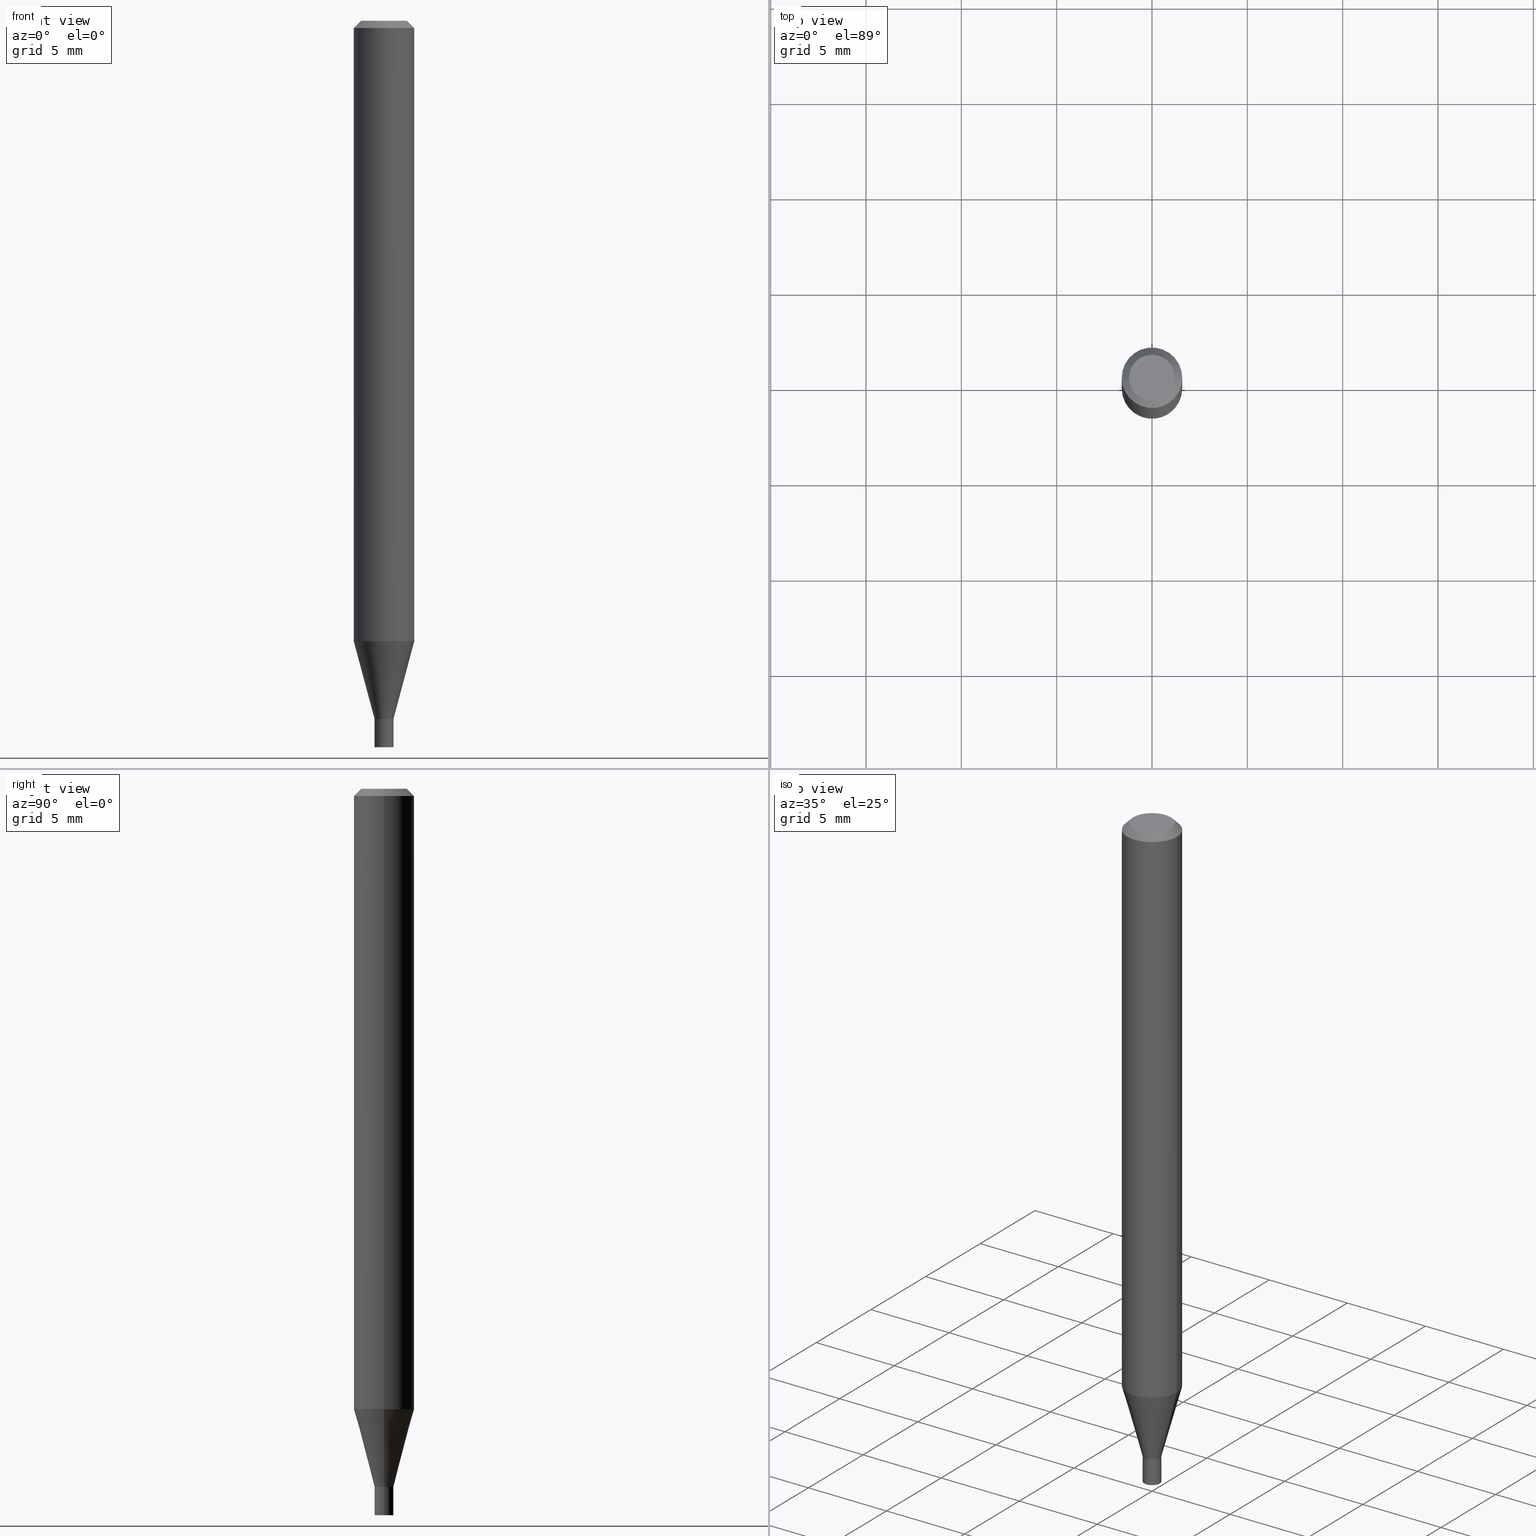
[diagram: canonical four-view strip — front | top / right | iso, engineering-drawing reading convention]
A machine part, canonical four-view strip (front | top / right | iso — engineering-drawing reading convention). The complete STEP part file that produces these views, byte-faithful:
ISO-10303-21;
HEADER;
FILE_DESCRIPTION (( 'STEP AP203' ),
    '1' );
FILE_NAME ('04074.STEP',
    '2024-03-14T16:57:08',
    ( '' ),
    ( '' ),
    'SwSTEP 2.0',
    'SolidWorks 2023',
    '' );
FILE_SCHEMA (( 'CONFIG_CONTROL_DESIGN' ));
ENDSEC;

DATA;
#1 = LINE ( 'NONE', #327, #191 ) ;
#2 = DIRECTION ( 'NONE',  ( -2.445468806185136597E-29, 3.491481338843145583E-15, 1.000000000000000000 ) ) ;
#3 = VERTEX_POINT ( 'NONE', #338 ) ;
#4 = FACE_OUTER_BOUND ( 'NONE', #88, .T. ) ;
#5 = AXIS2_PLACEMENT_3D ( 'NONE', #342, #404, #22 ) ;
#6 = DIRECTION ( 'NONE',  ( 0.7071067811865642261, -2.468850131082431399E-15, 0.7071067811865309194 ) ) ;
#7 = ORIENTED_EDGE ( 'NONE', *, *, #217, .F. ) ;
#8 =( NAMED_UNIT ( * ) PLANE_ANGLE_UNIT ( ) SI_UNIT ( $, .RADIAN. ) );
#9 = CARTESIAN_POINT ( 'NONE',  ( 3.576687321579069994E-29, -5.368277968210015545E-15, -1.500000000000000222 ) ) ;
#10 = CIRCLE ( 'NONE', #438, 0.01949999999999964262 ) ;
#11 = EDGE_CURVE ( 'NONE', #58, #307, #102, .T. ) ;
#12 = PRODUCT_DEFINITION_FORMATION_WITH_SPECIFIED_SOURCE ( 'ANY', '', #284, .NOT_KNOWN. ) ;
#13 = DIRECTION ( 'NONE',  ( 1.000000000000000000, -6.982962677686281699E-15, 0.000000000000000000 ) ) ;
#14 = DIRECTION ( 'NONE',  ( -2.445468806185136597E-29, 3.491481338843145583E-15, 1.000000000000000000 ) ) ;
#15 = CARTESIAN_POINT ( 'NONE',  ( 3.668203209277705088E-31, -5.237222008264718399E-17, -0.01499999999999999944 ) ) ;
#16 = EDGE_LOOP ( 'NONE', ( #19, #98, #455, #260 ) ) ;
#17 = CARTESIAN_POINT ( 'NONE',  ( -0.01949999999999964262, -4.461494534650565994E-15, -1.441500000000000226 ) ) ;
#18 = DIRECTION ( 'NONE',  ( -0.2588190451025211281, 5.211531920934547886E-15, 0.9659258262890679791 ) ) ;
#19 = ORIENTED_EDGE ( 'NONE', *, *, #108, .F. ) ;
#20 = PERSON_AND_ORGANIZATION ( #165, #28 ) ;
#21 = AXIS2_PLACEMENT_3D ( 'NONE', #115, #436, #440 ) ;
#22 = DIRECTION ( 'NONE',  ( 1.000000000000000000, -6.982962677686265922E-15, 4.876176775795935232E-29 ) ) ;
#23 = PERSON_AND_ORGANIZATION ( #165, #28 ) ;
#24 = ORIENTED_EDGE ( 'NONE', *, *, #211, .T. ) ;
#25 = DIMENSIONAL_EXPONENTS ( 1.000000000000000000, 0.000000000000000000, 0.000000000000000000, 0.000000000000000000, 0.000000000000000000, 0.000000000000000000, 0.000000000000000000 ) ;
#26 = CYLINDRICAL_SURFACE ( 'NONE', #5, 0.01949999999999964956 ) ;
#27 = ORIENTED_EDGE ( 'NONE', *, *, #217, .T. ) ;
#28 = ORGANIZATION ( 'UNSPECIFIED', 'UNSPECIFIED', '' ) ;
#29 = APPROVAL_DATE_TIME ( #414, #326 ) ;
#30 = DIRECTION ( 'NONE',  ( 1.000000000000000000, -6.982962677686281699E-15, 0.000000000000000000 ) ) ;
#31 = PLANE ( 'NONE',  #303 ) ;
#32 = ORIENTED_EDGE ( 'NONE', *, *, #69, .F. ) ;
#33 = CIRCLE ( 'NONE', #247, 0.01949999999999999997 ) ;
#34 = LINE ( 'NONE', #119, #286 ) ;
#35 = ORIENTED_EDGE ( 'NONE', *, *, #343, .T. ) ;
#36 = EDGE_CURVE ( 'NONE', #387, #307, #225, .T. ) ;
#37 = EDGE_CURVE ( 'NONE', #315, #357, #295, .T. ) ;
#38 = VERTEX_POINT ( 'NONE', #415 ) ;
#39 = CC_DESIGN_PERSON_AND_ORGANIZATION_ASSIGNMENT ( #23, #60, ( #12 ) ) ;
#40 = AXIS2_PLACEMENT_3D ( 'NONE', #447, #151, #77 ) ;
#41 = FACE_OUTER_BOUND ( 'NONE', #172, .T. ) ;
#42 = AXIS2_PLACEMENT_3D ( 'NONE', #153, #409, #301 ) ;
#43 = CONICAL_SURFACE ( 'NONE', #208, 0.01949999999999964262, 0.2617993877991498519 ) ;
#44 = DIRECTION ( 'NONE',  ( 1.000000000000000000, -6.982962677686267499E-15, 4.852736867747366768E-29 ) ) ;
#45 = EDGE_CURVE ( 'NONE', #242, #38, #352, .T. ) ;
#46 = CARTESIAN_POINT ( 'NONE',  ( 3.523920549712782908E-29, -5.031224609272974445E-15, -1.441000000000000281 ) ) ;
#47 = CC_DESIGN_PERSON_AND_ORGANIZATION_ASSIGNMENT ( #20, #458, ( #284 ) ) ;
#48 = ORIENTED_EDGE ( 'NONE', *, *, #11, .F. ) ;
#49 =( LENGTH_UNIT ( ) NAMED_UNIT ( * ) SI_UNIT ( $, .METRE. ) );
#50 = FACE_OUTER_BOUND ( 'NONE', #420, .T. ) ;
#51 = CARTESIAN_POINT ( 'NONE',  ( 0.01949999999999964262, -5.169138122157274804E-15, -1.441500000000000226 ) ) ;
#52 = CIRCLE ( 'NONE', #21, 0.01949999999999964956 ) ;
#53 = LENGTH_MEASURE_WITH_UNIT ( LENGTH_MEASURE( 0.02539999999999999897 ), #49 );
#54 = EDGE_LOOP ( 'NONE', ( #129, #312 ) ) ;
#55 = CALENDAR_DATE ( 2024, 14, 3 ) ;
#56 = ORIENTED_EDGE ( 'NONE', *, *, #328, .T. ) ;
#57 = DIRECTION ( 'NONE',  ( -1.000000000000000000, 6.982962677686265922E-15, -4.876176775795935793E-29 ) ) ;
#58 = VERTEX_POINT ( 'NONE', #300 ) ;
#59 = APPROVAL_PERSON_ORGANIZATION ( #121, #326, #353 ) ;
#60 = PERSON_AND_ORGANIZATION_ROLE ( 'design_supplier' ) ;
#61 = ORIENTED_EDGE ( 'NONE', *, *, #246, .F. ) ;
#62 = CALENDAR_DATE ( 2024, 14, 3 ) ;
#63 = DIRECTION ( 'NONE',  ( -1.000000000000000000, 6.982962677686265922E-15, -4.876176775795935793E-29 ) ) ;
#64 = ORIENTED_EDGE ( 'NONE', *, *, #37, .T. ) ;
#65 = ADVANCED_FACE ( 'NONE', ( #50 ), #43, .T. ) ;
#66 = VECTOR ( 'NONE', #166, 39.37007874015748143 ) ;
#67 = DIRECTION ( 'NONE',  ( -2.445468806185136597E-29, 3.491481338843145583E-15, 1.000000000000000000 ) ) ;
#68 = CARTESIAN_POINT ( 'NONE',  ( -0.06250000000000000000, -4.028574552831956093E-15, -1.281021815274537401 ) ) ;
#69 = EDGE_CURVE ( 'NONE', #3, #82, #199, .T. ) ;
#70 = ORIENTED_EDGE ( 'NONE', *, *, #180, .T. ) ;
#71 = FACE_OUTER_BOUND ( 'NONE', #126, .T. ) ;
#72 = ADVANCED_FACE ( 'NONE', ( #228 ), #198, .F. ) ;
#73 = DIRECTION ( 'NONE',  ( -2.445468806185136597E-29, 3.491481338843145583E-15, 1.000000000000000000 ) ) ;
#74 = AXIS2_PLACEMENT_3D ( 'NONE', #118, #150, #292 ) ;
#75 = ADVANCED_FACE ( 'NONE', ( #223 ), #26, .F. ) ;
#76 = DIRECTION ( 'NONE',  ( 1.000000000000000000, 0.000000000000000000, 0.000000000000000000 ) ) ;
#77 = DIRECTION ( 'NONE',  ( 1.000000000000000000, -6.982962677686266711E-15, 0.000000000000000000 ) ) ;
#78 = FACE_OUTER_BOUND ( 'NONE', #391, .T. ) ;
#79 = CARTESIAN_POINT ( 'NONE',  ( 3.525143284115875149E-29, -5.032970349942394371E-15, -1.441500000000000226 ) ) ;
#80 = LINE ( 'NONE', #375, #216 ) ;
#81 = CARTESIAN_POINT ( 'NONE',  ( -0.01949999999999964262, -4.894414516469177472E-15, -1.441500000000000226 ) ) ;
#82 = VERTEX_POINT ( 'NONE', #163 ) ;
#83 = LINE ( 'NONE', #405, #397 ) ;
#84 = CARTESIAN_POINT ( 'NONE',  ( 3.525143284115875149E-29, -5.032970349942394371E-15, -1.441500000000000226 ) ) ;
#85 = DIRECTION ( 'NONE',  ( 2.438088387897960049E-29, -3.491481338843145188E-15, -1.000000000000000000 ) ) ;
#86 = FACE_OUTER_BOUND ( 'NONE', #16, .T. ) ;
#87 = CALENDAR_DATE ( 2024, 14, 3 ) ;
#88 = EDGE_LOOP ( 'NONE', ( #32, #288 ) ) ;
#89 = AXIS2_PLACEMENT_3D ( 'NONE', #190, #400, #111 ) ;
#90 = AXIS2_PLACEMENT_3D ( 'NONE', #465, #287, #428 ) ;
#91 = LOCAL_TIME ( 12, 57, 8.000000000000000000, #350 ) ;
#92 = CALENDAR_DATE ( 2024, 14, 3 ) ;
#93 = ORIENTED_EDGE ( 'NONE', *, *, #69, .T. ) ;
#94 = DESIGN_CONTEXT ( 'detailed design', #366, 'design' ) ;
#95 = VERTEX_POINT ( 'NONE', #114 ) ;
#96 = FACE_OUTER_BOUND ( 'NONE', #106, .T. ) ;
#97 = VECTOR ( 'NONE', #18, 39.37007874015748854 ) ;
#98 = ORIENTED_EDGE ( 'NONE', *, *, #37, .F. ) ;
#99 = AXIS2_PLACEMENT_3D ( 'NONE', #227, #85, #63 ) ;
#100 = CARTESIAN_POINT ( 'NONE',  ( 3.525143284115874028E-29, -5.032970349942393582E-15, -1.441500000000000004 ) ) ;
#101 = CARTESIAN_POINT ( 'NONE',  ( 3.525143284115875149E-29, -5.032970349942394371E-15, -1.441500000000000226 ) ) ;
#102 = CIRCLE ( 'NONE', #374, 0.06250000000000000000 ) ;
#103 = DIRECTION ( 'NONE',  ( 1.000000000000000000, -6.982962677686258033E-15, 0.000000000000000000 ) ) ;
#104 = AXIS2_PLACEMENT_3D ( 'NONE', #267, #67, #209 ) ;
#105 = CARTESIAN_POINT ( 'NONE',  ( 3.668203209277704895E-29, -5.237222008264718177E-15, -1.500000000000000222 ) ) ;
#106 = EDGE_LOOP ( 'NONE', ( #61, #434, #24, #394 ) ) ;
#107 = DIRECTION ( 'NONE',  ( -0.7071067811865608954, 2.468850131082397083E-15, -0.7071067811865341390 ) ) ;
#108 = EDGE_CURVE ( 'NONE', #357, #242, #159, .T. ) ;
#109 = LOCAL_TIME ( 12, 57, 8.000000000000000000, #308 ) ;
#110 = EDGE_CURVE ( 'NONE', #38, #242, #408, .T. ) ;
#111 = DIRECTION ( 'NONE',  ( 1.000000000000000000, -6.982962677686258033E-15, 0.000000000000000000 ) ) ;
#112 = DIRECTION ( 'NONE',  ( -0.7071067811865642261, 7.493145998870414114E-15, 0.7071067811865309194 ) ) ;
#113 = AXIS2_PLACEMENT_3D ( 'NONE', #333, #439, #13 ) ;
#114 = CARTESIAN_POINT ( 'NONE',  ( 0.01949999999999964956, -5.167392381487853301E-15, -1.441000000000000281 ) ) ;
#115 = CARTESIAN_POINT ( 'NONE',  ( 3.523920549712782908E-29, -5.031224609272974445E-15, -1.441000000000000281 ) ) ;
#116 = CARTESIAN_POINT ( 'NONE',  ( 0.06250000000000000000, -4.811533449433679005E-16, -0.01499999999999999944 ) ) ;
#117 = FACE_OUTER_BOUND ( 'NONE', #167, .T. ) ;
#118 = CARTESIAN_POINT ( 'NONE',  ( 0.000000000000000000, 0.000000000000000000, 0.000000000000000000 ) ) ;
#119 = CARTESIAN_POINT ( 'NONE',  ( 0.01949999999999964262, -5.169138122157274804E-15, -1.441500000000000226 ) ) ;
#120 = DIRECTION ( 'NONE',  ( 1.000000000000000000, -6.982962677686286432E-15, 0.000000000000000000 ) ) ;
#121 = PERSON_AND_ORGANIZATION ( #165, #28 ) ;
#122 = ADVANCED_FACE ( 'NONE', ( #86 ), #266, .T. ) ;
#123 = DIRECTION ( 'NONE',  ( -2.445468806185136597E-29, 3.491481338843145583E-15, 1.000000000000000000 ) ) ;
#124 = PRODUCT_RELATED_PRODUCT_CATEGORY ( 'detail', '', ( #284 ) ) ;
#125 = SECURITY_CLASSIFICATION_LEVEL ( 'unclassified' ) ;
#126 = EDGE_LOOP ( 'NONE', ( #149, #358, #316, #457 ) ) ;
#127 = CIRCLE ( 'NONE', #255, 0.01949999999999999997 ) ;
#128 = APPROVAL_ROLE ( '' ) ;
#129 = ORIENTED_EDGE ( 'NONE', *, *, #423, .F. ) ;
#130 = APPLICATION_PROTOCOL_DEFINITION ( 'international standard', 'config_control_design', 1994, #366 ) ;
#131 = ORIENTED_EDGE ( 'NONE', *, *, #254, .F. ) ;
#132 = ORIENTED_EDGE ( 'NONE', *, *, #370, .F. ) ;
#133 = ADVANCED_FACE ( 'NONE', ( #117 ), #346, .T. ) ;
#134 = AXIS2_PLACEMENT_3D ( 'NONE', #318, #182, #103 ) ;
#135 = CC_DESIGN_APPROVAL ( #464, ( #282 ) ) ;
#136 = CARTESIAN_POINT ( 'NONE',  ( 0.000000000000000000, 0.000000000000000000, 0.000000000000000000 ) ) ;
#137 = ORIENTED_EDGE ( 'NONE', *, *, #45, .T. ) ;
#138 = CARTESIAN_POINT ( 'NONE',  ( -0.01949999999999999997, -4.996540345630337403E-15, -1.500000000000000222 ) ) ;
#139 = AXIS2_PLACEMENT_3D ( 'NONE', #259, #441, #57 ) ;
#140 = EDGE_CURVE ( 'NONE', #82, #3, #245, .T. ) ;
#141 = PLANE ( 'NONE',  #323 ) ;
#142 = CARTESIAN_POINT ( 'NONE',  ( 0.01949999999999964956, -1.361677722148797436E-16, 9.508544712801902997E-31 ) ) ;
#143 = CARTESIAN_POINT ( 'NONE',  ( 0.01949999999999999997, -5.169138122157276382E-15, -1.441500000000000226 ) ) ;
#144 = CC_DESIGN_PERSON_AND_ORGANIZATION_ASSIGNMENT ( #340, #204, ( #459 ) ) ;
#145 = DIRECTION ( 'NONE',  ( 1.000000000000000000, -6.982962677686265922E-15, 4.876176775795935793E-29 ) ) ;
#146 = CYLINDRICAL_SURFACE ( 'NONE', #74, 0.01949999999999999997 ) ;
#147 = LINE ( 'NONE', #407, #332 ) ;
#148 = VECTOR ( 'NONE', #107, 39.37007874015748143 ) ;
#149 = ORIENTED_EDGE ( 'NONE', *, *, #36, .F. ) ;
#150 = DIRECTION ( 'NONE',  ( -2.445468806185136597E-29, 3.491481338843145583E-15, 1.000000000000000000 ) ) ;
#151 = DIRECTION ( 'NONE',  ( -2.445468806185136597E-29, 3.491481338843145583E-15, 1.000000000000000000 ) ) ;
#152 = DIRECTION ( 'NONE',  ( -2.445468806185136597E-29, 3.491481338843145583E-15, 1.000000000000000000 ) ) ;
#153 = CARTESIAN_POINT ( 'NONE',  ( 3.668203209277705088E-31, -5.237222008264718399E-17, -0.01499999999999999944 ) ) ;
#154 = VERTEX_POINT ( 'NONE', #422 ) ;
#155 = AXIS2_PLACEMENT_3D ( 'NONE', #257, #403, #76 ) ;
#156 = EDGE_CURVE ( 'NONE', #387, #161, #461, .T. ) ;
#157 = VECTOR ( 'NONE', #171, 39.37007874015748143 ) ;
#158 = ADVANCED_FACE ( 'NONE', ( #454 ), #31, .F. ) ;
#159 = LINE ( 'NONE', #116, #433 ) ;
#160 = DATE_AND_TIME ( #62, #437 ) ;
#161 = VERTEX_POINT ( 'NONE', #184 ) ;
#162 = LOCAL_TIME ( 12, 57, 8.000000000000000000, #237 ) ;
#163 = CARTESIAN_POINT ( 'NONE',  ( -0.01899999999999999953, -4.895318002973865592E-15, -1.441500000000000004 ) ) ;
#164 = APPROVAL_STATUS ( 'not_yet_approved' ) ;
#165 = PERSON ( 'UNSPECIFIED', 'UNSPECIFIED', 'UNSPECIFIED', ('UNSPECIFIED'), ('UNSPECIFIED'), ('UNSPECIFIED') ) ;
#166 = DIRECTION ( 'NONE',  ( -2.445468806185136877E-29, 3.491481338843145188E-15, 1.000000000000000000 ) ) ;
#167 = EDGE_LOOP ( 'NONE', ( #460, #175, #185, #418 ) ) ;
#168 = SHAPE_DEFINITION_REPRESENTATION ( #322, #401 ) ;
#169 = ORIENTED_EDGE ( 'NONE', *, *, #108, .T. ) ;
#170 = CONICAL_SURFACE ( 'NONE', #341, 0.06250000000000000000, 0.7853981633974672638 ) ;
#171 = DIRECTION ( 'NONE',  ( -2.445468806185136877E-29, 3.491481338843145188E-15, 1.000000000000000000 ) ) ;
#172 = EDGE_LOOP ( 'NONE', ( #132, #70, #200, #406 ) ) ;
#173 =( GEOMETRIC_REPRESENTATION_CONTEXT ( 3 ) GLOBAL_UNCERTAINTY_ASSIGNED_CONTEXT ( ( #219 ) ) GLOBAL_UNIT_ASSIGNED_CONTEXT ( ( #371, #8, #189 ) ) REPRESENTATION_CONTEXT ( 'NONE', 'WORKASPACE' ) );
#174 = EDGE_CURVE ( 'NONE', #154, #244, #1, .T. ) ;
#175 = ORIENTED_EDGE ( 'NONE', *, *, #462, .T. ) ;
#176 = EDGE_CURVE ( 'NONE', #315, #38, #432, .T. ) ;
#177 = DIRECTION ( 'NONE',  ( 1.000000000000000000, -6.982962677686286432E-15, 0.000000000000000000 ) ) ;
#178 = CIRCLE ( 'NONE', #89, 0.01949999999999999997 ) ;
#179 = CARTESIAN_POINT ( 'NONE',  ( -0.06250000000000000000, 4.440892098500626162E-16, -3.074334431409316114E-30 ) ) ;
#180 = EDGE_CURVE ( 'NONE', #239, #154, #127, .T. ) ;
#181 = AXIS2_PLACEMENT_3D ( 'NONE', #337, #73, #331 ) ;
#182 = DIRECTION ( 'NONE',  ( -2.445468806185136597E-29, 3.491481338843145583E-15, 1.000000000000000000 ) ) ;
#183 = CIRCLE ( 'NONE', #181, 0.06250000000000000000 ) ;
#184 = CARTESIAN_POINT ( 'NONE',  ( -0.01949999999999964956, -4.892668775799756758E-15, -1.441000000000000281 ) ) ;
#185 = ORIENTED_EDGE ( 'NONE', *, *, #425, .T. ) ;
#186 = DIRECTION ( 'NONE',  ( 1.000000000000000000, -6.982962677686258033E-15, 0.000000000000000000 ) ) ;
#187 = FACE_OUTER_BOUND ( 'NONE', #302, .T. ) ;
#188 = CARTESIAN_POINT ( 'NONE',  ( -0.04749999999999999362, 3.578768372314200645E-16, -5.645421759935625219E-16 ) ) ;
#189 =( NAMED_UNIT ( * ) SI_UNIT ( $, .STERADIAN. ) SOLID_ANGLE_UNIT ( ) );
#190 = CARTESIAN_POINT ( 'NONE',  ( 3.668203209277704895E-29, -5.237222008264718177E-15, -1.500000000000000222 ) ) ;
#191 = VECTOR ( 'NONE', #368, 39.37007874015748143 ) ;
#192 = CARTESIAN_POINT ( 'NONE',  ( 1.380570281168130538E-44, -1.971088472471417818E-30, -5.645421759935600567E-16 ) ) ;
#193 = FACE_OUTER_BOUND ( 'NONE', #276, .T. ) ;
#194 = DIRECTION ( 'NONE',  ( -2.445468806185136597E-29, 3.491481338843145583E-15, 1.000000000000000000 ) ) ;
#195 = ADVANCED_FACE ( 'NONE', ( #4 ), #141, .F. ) ;
#196 = COORDINATED_UNIVERSAL_TIME_OFFSET ( 5, 0, .BEHIND. ) ;
#197 = CC_DESIGN_DATE_AND_TIME_ASSIGNMENT ( #206, #241, ( #282 ) ) ;
#198 = PLANE ( 'NONE',  #139 ) ;
#199 = CIRCLE ( 'NONE', #113, 0.01899999999999999953 ) ;
#200 = ORIENTED_EDGE ( 'NONE', *, *, #174, .T. ) ;
#201 = DIRECTION ( 'NONE',  ( 1.000000000000000000, -6.982962677686266711E-15, 0.000000000000000000 ) ) ;
#202 = PERSON_AND_ORGANIZATION ( #165, #28 ) ;
#203 = ORIENTED_EDGE ( 'NONE', *, *, #345, .F. ) ;
#204 = PERSON_AND_ORGANIZATION_ROLE ( 'classification_officer' ) ;
#205 = EDGE_LOOP ( 'NONE', ( #27, #451 ) ) ;
#206 = DATE_AND_TIME ( #92, #91 ) ;
#207 = ORIENTED_EDGE ( 'NONE', *, *, #324, .T. ) ;
#208 = AXIS2_PLACEMENT_3D ( 'NONE', #84, #263, #120 ) ;
#209 = DIRECTION ( 'NONE',  ( 1.000000000000000000, -6.982962677686266711E-15, 4.876176775795935793E-29 ) ) ;
#210 = ORIENTED_EDGE ( 'NONE', *, *, #36, .T. ) ;
#211 = EDGE_CURVE ( 'NONE', #161, #95, #393, .T. ) ;
#212 = CC_DESIGN_PERSON_AND_ORGANIZATION_ASSIGNMENT ( #388, #313, ( #282 ) ) ;
#213 = DIRECTION ( 'NONE',  ( -2.445468806185136597E-29, 3.491481338843145583E-15, 1.000000000000000000 ) ) ;
#214 = CONICAL_SURFACE ( 'NONE', #426, 0.01899999999999999953, 0.7853981633974718157 ) ;
#215 = DIRECTION ( 'NONE',  ( -2.445468806185136597E-29, 3.491481338843145583E-15, 1.000000000000000000 ) ) ;
#216 = VECTOR ( 'NONE', #112, 39.37007874015748143 ) ;
#217 = EDGE_CURVE ( 'NONE', #244, #424, #297, .T. ) ;
#218 = DIRECTION ( 'NONE',  ( 1.000000000000000000, -6.982962677686265922E-15, 4.876176775795935793E-29 ) ) ;
#219 = UNCERTAINTY_MEASURE_WITH_UNIT (LENGTH_MEASURE( 1.000000000000000082E-05 ), #371, 'distance_accuracy_value', 'NONE');
#220 = MECHANICAL_CONTEXT ( 'NONE', #290, 'mechanical' ) ;
#221 = DIRECTION ( 'NONE',  ( -2.445468806185136877E-29, 3.491481338843145188E-15, 1.000000000000000000 ) ) ;
#222 = AXIS2_PLACEMENT_3D ( 'NONE', #399, #369, #44 ) ;
#223 = FACE_OUTER_BOUND ( 'NONE', #361, .T. ) ;
#224 = DIRECTION ( 'NONE',  ( -1.000000000000000000, 6.982962677686266711E-15, 0.000000000000000000 ) ) ;
#225 = LINE ( 'NONE', #81, #97 ) ;
#226 = DIRECTION ( 'NONE',  ( 2.445468806185136597E-29, -3.491481338843145583E-15, -1.000000000000000000 ) ) ;
#227 = CARTESIAN_POINT ( 'NONE',  ( 1.361677722149174363E-16, 0.01949999999999496580, -1.441500000000000226 ) ) ;
#228 = FACE_OUTER_BOUND ( 'NONE', #344, .T. ) ;
#229 = DIRECTION ( 'NONE',  ( 1.000000000000000000, -6.982962677686286432E-15, 0.000000000000000000 ) ) ;
#230 = ORIENTED_EDGE ( 'NONE', *, *, #423, .T. ) ;
#231 = DIRECTION ( 'NONE',  ( -2.445468806185136597E-29, 3.491481338843145583E-15, 1.000000000000000000 ) ) ;
#232 = DATE_AND_TIME ( #55, #240 ) ;
#233 = DIRECTION ( 'NONE',  ( 1.000000000000000000, -6.982962677686281699E-15, 0.000000000000000000 ) ) ;
#234 = AXIS2_PLACEMENT_3D ( 'NONE', #15, #123, #201 ) ;
#235 = EDGE_LOOP ( 'NONE', ( #93, #285, #442, #349 ) ) ;
#236 = ORIENTED_EDGE ( 'NONE', *, *, #425, .F. ) ;
#237 = COORDINATED_UNIVERSAL_TIME_OFFSET ( 5, 0, .BEHIND. ) ;
#238 = CARTESIAN_POINT ( 'NONE',  ( 3.525143284115874028E-29, -5.032970349942393582E-15, -1.441500000000000004 ) ) ;
#239 = VERTEX_POINT ( 'NONE', #138 ) ;
#240 = LOCAL_TIME ( 12, 57, 8.000000000000000000, #196 ) ;
#241 = DATE_TIME_ROLE ( 'creation_date' ) ;
#242 = VERTEX_POINT ( 'NONE', #364 ) ;
#243 = CARTESIAN_POINT ( 'NONE',  ( 0.000000000000000000, 0.000000000000000000, 0.000000000000000000 ) ) ;
#244 = VERTEX_POINT ( 'NONE', #143 ) ;
#245 = CIRCLE ( 'NONE', #466, 0.01899999999999999953 ) ;
#246 = EDGE_CURVE ( 'NONE', #387, #384, #10, .T. ) ;
#247 = AXIS2_PLACEMENT_3D ( 'NONE', #253, #410, #261 ) ;
#248 = ADVANCED_FACE ( 'NONE', ( #354 ), #452, .F. ) ;
#249 = AXIS2_PLACEMENT_3D ( 'NONE', #136, #213, #359 ) ;
#250 = CYLINDRICAL_SURFACE ( 'NONE', #355, 0.01949999999999999997 ) ;
#251 = ADVANCED_FACE ( 'NONE', ( #382 ), #296, .T. ) ;
#252 = DIRECTION ( 'NONE',  ( -2.438088387897960049E-29, 3.491481338843145188E-15, 1.000000000000000000 ) ) ;
#253 = CARTESIAN_POINT ( 'NONE',  ( 3.525143284115875149E-29, -5.032970349942394371E-15, -1.441500000000000226 ) ) ;
#254 = EDGE_CURVE ( 'NONE', #384, #58, #34, .T. ) ;
#255 = AXIS2_PLACEMENT_3D ( 'NONE', #105, #398, #186 ) ;
#256 = CARTESIAN_POINT ( 'NONE',  ( 0.04749999999999999362, -4.035134999187588484E-16, -5.645421759935574929E-16 ) ) ;
#257 = CARTESIAN_POINT ( 'NONE',  ( 0.000000000000000000, 0.000000000000000000, 0.000000000000000000 ) ) ;
#258 = CC_DESIGN_PERSON_AND_ORGANIZATION_ASSIGNMENT ( #390, #450, ( #12 ) ) ;
#259 = CARTESIAN_POINT ( 'NONE',  ( 3.316907271900976096E-16, 0.04749999999999999362, -4.481164515918294248E-16 ) ) ;
#260 = ORIENTED_EDGE ( 'NONE', *, *, #110, .T. ) ;
#261 = DIRECTION ( 'NONE',  ( 1.000000000000000000, -6.982962677686258033E-15, 0.000000000000000000 ) ) ;
#262 = DIRECTION ( 'NONE',  ( 1.000000000000000000, -6.982962677686284065E-15, 0.000000000000000000 ) ) ;
#263 = DIRECTION ( 'NONE',  ( -2.445468806185136597E-29, 3.491481338843145583E-15, 1.000000000000000000 ) ) ;
#264 = CARTESIAN_POINT ( 'NONE',  ( -0.01949999999999999997, -4.996540345630337403E-15, -1.441500000000000226 ) ) ;
#265 = DIRECTION ( 'NONE',  ( -2.445468806185136597E-29, 3.491481338843145583E-15, 1.000000000000000000 ) ) ;
#266 = CONICAL_SURFACE ( 'NONE', #42, 0.06250000000000000000, 0.7853981633974672638 ) ;
#267 = CARTESIAN_POINT ( 'NONE',  ( 0.000000000000000000, 0.000000000000000000, 0.000000000000000000 ) ) ;
#268 = ORIENTED_EDGE ( 'NONE', *, *, #11, .T. ) ;
#269 = FACE_OUTER_BOUND ( 'NONE', #309, .T. ) ;
#270 = DIRECTION ( 'NONE',  ( -2.445468806185136597E-29, 3.491481338843145583E-15, 1.000000000000000000 ) ) ;
#271 = DIRECTION ( 'NONE',  ( -2.445468806185136597E-29, 3.491481338843145583E-15, 1.000000000000000000 ) ) ;
#272 = PERSON_AND_ORGANIZATION ( #165, #28 ) ;
#273 = ORIENTED_EDGE ( 'NONE', *, *, #156, .F. ) ;
#274 = COORDINATED_UNIVERSAL_TIME_OFFSET ( 5, 0, .BEHIND. ) ;
#275 = AXIS2_PLACEMENT_3D ( 'NONE', #238, #270, #30 ) ;
#276 = EDGE_LOOP ( 'NONE', ( #203, #281, #207, #419 ) ) ;
#277 = DATE_TIME_ROLE ( 'classification_date' ) ;
#278 = ORIENTED_EDGE ( 'NONE', *, *, #330, .T. ) ;
#279 = APPROVAL_STATUS ( 'not_yet_approved' ) ;
#280 = ADVANCED_FACE ( 'NONE', ( #96 ), #427, .F. ) ;
#281 = ORIENTED_EDGE ( 'NONE', *, *, #140, .T. ) ;
#282 = PRODUCT_DEFINITION ( 'UNKNOWN', '', #12, #94 ) ;
#283 = CARTESIAN_POINT ( 'NONE',  ( -0.01949999999999964956, 1.385558334732170462E-16, -9.591923425996893733E-31 ) ) ;
#284 = PRODUCT ( '04074', '04074', '', ( #220 ) ) ;
#285 = ORIENTED_EDGE ( 'NONE', *, *, #345, .T. ) ;
#286 = VECTOR ( 'NONE', #411, 39.37007874015748854 ) ;
#287 = DIRECTION ( 'NONE',  ( -2.445468806185136597E-29, 3.491481338843145583E-15, 1.000000000000000000 ) ) ;
#288 = ORIENTED_EDGE ( 'NONE', *, *, #140, .F. ) ;
#289 = AXIS2_PLACEMENT_3D ( 'NONE', #46, #194, #262 ) ;
#290 = APPLICATION_CONTEXT ( 'configuration controlled 3d designs of mechanical parts and assemblies' ) ;
#291 = LINE ( 'NONE', #435, #402 ) ;
#292 = DIRECTION ( 'NONE',  ( 1.000000000000000000, -6.982962677686265922E-15, 4.876176775795935793E-29 ) ) ;
#293 = ADVANCED_FACE ( 'NONE', ( #41 ), #250, .T. ) ;
#294 = EDGE_CURVE ( 'NONE', #307, #38, #362, .T. ) ;
#295 = CIRCLE ( 'NONE', #367, 0.04749999999999999362 ) ;
#296 = CONICAL_SURFACE ( 'NONE', #275, 0.01899999999999999953, 0.7853981633974718157 ) ;
#297 = CIRCLE ( 'NONE', #134, 0.01949999999999999997 ) ;
#298 = ORIENTED_EDGE ( 'NONE', *, *, #370, .T. ) ;
#299 = DIRECTION ( 'NONE',  ( 1.000000000000000000, -6.982962677686266711E-15, 4.876176775795935793E-29 ) ) ;
#300 = CARTESIAN_POINT ( 'NONE',  ( 0.06250000000000000000, -4.909098930037410379E-15, -1.281021815274537401 ) ) ;
#301 = DIRECTION ( 'NONE',  ( -1.000000000000000000, 6.982962677686266711E-15, 0.000000000000000000 ) ) ;
#302 = EDGE_LOOP ( 'NONE', ( #230, #298, #7, #356 ) ) ;
#303 = AXIS2_PLACEMENT_3D ( 'NONE', #9, #431, #145 ) ;
#304 = CARTESIAN_POINT ( 'NONE',  ( 3.132698889296539192E-29, -4.472663762682018710E-15, -1.281021815274537401 ) ) ;
#305 = APPROVAL_DATE_TIME ( #232, #429 ) ;
#306 = DIRECTION ( 'NONE',  ( 1.000000000000000000, -6.982962677686262766E-15, 0.000000000000000000 ) ) ;
#307 = VERTEX_POINT ( 'NONE', #68 ) ;
#308 = COORDINATED_UNIVERSAL_TIME_OFFSET ( 5, 0, .BEHIND. ) ;
#309 = EDGE_LOOP ( 'NONE', ( #378, #169, #137, #351 ) ) ;
#310 = CLOSED_SHELL ( 'NONE', ( #280, #251, #412, #383, #65, #339, #133, #122, #72, #195, #446, #75 ) ) ;
#311 = CIRCLE ( 'NONE', #445, 0.01949999999999964262 ) ;
#312 = ORIENTED_EDGE ( 'NONE', *, *, #180, .F. ) ;
#313 = PERSON_AND_ORGANIZATION_ROLE ( 'creator' ) ;
#314 = MANIFOLD_SOLID_BREP ( 'Body-Move/Copy2[2]', #310 ) ;
#315 = VERTEX_POINT ( 'NONE', #188 ) ;
#316 = ORIENTED_EDGE ( 'NONE', *, *, #254, .T. ) ;
#317 = DIRECTION ( 'NONE',  ( -2.445468806185136877E-29, 3.491481338843145188E-15, 1.000000000000000000 ) ) ;
#318 = CARTESIAN_POINT ( 'NONE',  ( 3.525143284115875149E-29, -5.032970349942394371E-15, -1.441500000000000226 ) ) ;
#319 = CC_DESIGN_APPROVAL ( #326, ( #459 ) ) ;
#320 = MANIFOLD_SOLID_BREP ( 'Body-Move/Copy2[1]', #396 ) ;
#321 = LINE ( 'NONE', #142, #360 ) ;
#322 = PRODUCT_DEFINITION_SHAPE ( 'NONE', 'NONE',  #282 ) ;
#323 = AXIS2_PLACEMENT_3D ( 'NONE', #325, #252, #218 ) ;
#324 = EDGE_CURVE ( 'NONE', #3, #95, #291, .T. ) ;
#325 = CARTESIAN_POINT ( 'NONE',  ( 3.525143284115874028E-29, -5.032970349942393582E-15, -1.441500000000000004 ) ) ;
#326 = APPROVAL ( #164, 'UNSPECIFIED' ) ;
#327 = CARTESIAN_POINT ( 'NONE',  ( 0.01949999999999999997, -1.361677722148821841E-16, 9.508544712802074656E-31 ) ) ;
#328 = EDGE_CURVE ( 'NONE', #357, #315, #376, .T. ) ;
#329 = CYLINDRICAL_SURFACE ( 'NONE', #385, 0.06250000000000000000 ) ;
#330 = EDGE_CURVE ( 'NONE', #384, #95, #321, .T. ) ;
#331 = DIRECTION ( 'NONE',  ( 1.000000000000000000, -6.982962677686262766E-15, 0.000000000000000000 ) ) ;
#332 = VECTOR ( 'NONE', #373, 39.37007874015748143 ) ;
#333 = CARTESIAN_POINT ( 'NONE',  ( 3.525143284115874028E-29, -5.032970349942393582E-15, -1.441500000000000004 ) ) ;
#334 = CARTESIAN_POINT ( 'NONE',  ( 3.525143284115874028E-29, -5.032970349942393582E-15, -1.441500000000000004 ) ) ;
#335 = DIRECTION ( 'NONE',  ( 0.7071067811865608954, -7.319954787623300222E-15, -0.7071067811865341390 ) ) ;
#336 = ORIENTED_EDGE ( 'NONE', *, *, #343, .F. ) ;
#337 = CARTESIAN_POINT ( 'NONE',  ( 3.132698889296539192E-29, -4.472663762682018710E-15, -1.281021815274537401 ) ) ;
#338 = CARTESIAN_POINT ( 'NONE',  ( 0.01899999999999999953, -5.165646640818432586E-15, -1.441500000000000004 ) ) ;
#339 = ADVANCED_FACE ( 'NONE', ( #71 ), #421, .T. ) ;
#340 = PERSON_AND_ORGANIZATION ( #165, #28 ) ;
#341 = AXIS2_PLACEMENT_3D ( 'NONE', #377, #226, #224 ) ;
#342 = CARTESIAN_POINT ( 'NONE',  ( 0.000000000000000000, 0.000000000000000000, 0.000000000000000000 ) ) ;
#343 = EDGE_CURVE ( 'NONE', #384, #387, #311, .T. ) ;
#344 = EDGE_LOOP ( 'NONE', ( #64, #56 ) ) ;
#345 = EDGE_CURVE ( 'NONE', #82, #161, #80, .T. ) ;
#346 = CYLINDRICAL_SURFACE ( 'NONE', #104, 0.06250000000000000000 ) ;
#347 = CALENDAR_DATE ( 2024, 14, 3 ) ;
#348 = DIRECTION ( 'NONE',  ( -2.445468806185136597E-29, 3.491481338843145583E-15, 1.000000000000000000 ) ) ;
#349 = ORIENTED_EDGE ( 'NONE', *, *, #324, .F. ) ;
#350 = COORDINATED_UNIVERSAL_TIME_OFFSET ( 5, 0, .BEHIND. ) ;
#351 = ORIENTED_EDGE ( 'NONE', *, *, #176, .F. ) ;
#352 = CIRCLE ( 'NONE', #40, 0.06250000000000000000 ) ;
#353 = APPROVAL_ROLE ( '' ) ;
#354 = FACE_OUTER_BOUND ( 'NONE', #205, .T. ) ;
#355 = AXIS2_PLACEMENT_3D ( 'NONE', #243, #215, #392 ) ;
#356 = ORIENTED_EDGE ( 'NONE', *, *, #174, .F. ) ;
#357 = VERTEX_POINT ( 'NONE', #256 ) ;
#358 = ORIENTED_EDGE ( 'NONE', *, *, #246, .T. ) ;
#359 = DIRECTION ( 'NONE',  ( 1.000000000000000000, -6.982962677686265922E-15, 4.876176775795935232E-29 ) ) ;
#360 = VECTOR ( 'NONE', #317, 39.37007874015748143 ) ;
#361 = EDGE_LOOP ( 'NONE', ( #273, #336, #278, #389 ) ) ;
#362 = LINE ( 'NONE', #179, #157 ) ;
#363 = CARTESIAN_POINT ( 'NONE',  ( -0.06250000000000000000, 3.840629472727444916E-16, -0.01499999999999999944 ) ) ;
#364 = CARTESIAN_POINT ( 'NONE',  ( 0.06250000000000000000, -4.888073874380388472E-16, -0.01499999999999999944 ) ) ;
#365 = ADVANCED_FACE ( 'NONE', ( #187 ), #146, .T. ) ;
#366 = APPLICATION_CONTEXT ( 'configuration controlled 3d designs of mechanical parts and assemblies' ) ;
#367 = AXIS2_PLACEMENT_3D ( 'NONE', #192, #231, #381 ) ;
#368 = DIRECTION ( 'NONE',  ( -2.445468806185136877E-29, 3.491481338843145188E-15, 1.000000000000000000 ) ) ;
#369 = DIRECTION ( 'NONE',  ( -2.445468806185136597E-29, 3.491481338843145583E-15, 1.000000000000000000 ) ) ;
#370 = EDGE_CURVE ( 'NONE', #239, #424, #83, .T. ) ;
#371 =( CONVERSION_BASED_UNIT ( 'INCH', #53 ) LENGTH_UNIT ( ) NAMED_UNIT ( #25 ) );
#372 = CARTESIAN_POINT ( 'NONE',  ( 0.000000000000000000, 0.000000000000000000, 0.000000000000000000 ) ) ;
#373 = DIRECTION ( 'NONE',  ( -2.445468806185136877E-29, 3.491481338843145188E-15, 1.000000000000000000 ) ) ;
#374 = AXIS2_PLACEMENT_3D ( 'NONE', #304, #271, #306 ) ;
#375 = CARTESIAN_POINT ( 'NONE',  ( -0.01899999999999999953, -4.897967230147974426E-15, -1.441500000000000004 ) ) ;
#376 = CIRCLE ( 'NONE', #222, 0.04749999999999999362 ) ;
#377 = CARTESIAN_POINT ( 'NONE',  ( 3.668203209277705088E-31, -5.237222008264718399E-17, -0.01499999999999999944 ) ) ;
#378 = ORIENTED_EDGE ( 'NONE', *, *, #328, .F. ) ;
#379 = DIRECTION ( 'NONE',  ( 1.000000000000000000, -6.982962677686281699E-15, 0.000000000000000000 ) ) ;
#380 = EDGE_CURVE ( 'NONE', #95, #161, #52, .T. ) ;
#381 = DIRECTION ( 'NONE',  ( 1.000000000000000000, -6.982962677686267499E-15, 4.852736867747366768E-29 ) ) ;
#382 = FACE_OUTER_BOUND ( 'NONE', #235, .T. ) ;
#383 = ADVANCED_FACE ( 'NONE', ( #78 ), #329, .T. ) ;
#384 = VERTEX_POINT ( 'NONE', #51 ) ;
#385 = AXIS2_PLACEMENT_3D ( 'NONE', #372, #152, #299 ) ;
#386 = DATE_AND_TIME ( #347, #162 ) ;
#387 = VERTEX_POINT ( 'NONE', #17 ) ;
#388 = PERSON_AND_ORGANIZATION ( #165, #28 ) ;
#389 = ORIENTED_EDGE ( 'NONE', *, *, #380, .T. ) ;
#390 = PERSON_AND_ORGANIZATION ( #165, #28 ) ;
#391 = EDGE_LOOP ( 'NONE', ( #268, #463, #416, #236 ) ) ;
#392 = DIRECTION ( 'NONE',  ( 1.000000000000000000, -6.982962677686265922E-15, 4.876176775795935793E-29 ) ) ;
#393 = CIRCLE ( 'NONE', #289, 0.01949999999999964956 ) ;
#394 = ORIENTED_EDGE ( 'NONE', *, *, #330, .F. ) ;
#395 = APPROVAL_PERSON_ORGANIZATION ( #202, #429, #448 ) ;
#396 = CLOSED_SHELL ( 'NONE', ( #365, #158, #293, #248 ) ) ;
#397 = VECTOR ( 'NONE', #221, 39.37007874015748143 ) ;
#398 = DIRECTION ( 'NONE',  ( -2.445468806185136597E-29, 3.491481338843145583E-15, 1.000000000000000000 ) ) ;
#399 = CARTESIAN_POINT ( 'NONE',  ( 1.380570281168130538E-44, -1.971088472471417818E-30, -5.645421759935600567E-16 ) ) ;
#400 = DIRECTION ( 'NONE',  ( -2.445468806185136597E-29, 3.491481338843145583E-15, 1.000000000000000000 ) ) ;
#401 = ADVANCED_BREP_SHAPE_REPRESENTATION ( '04074', ( #320, #314, #155 ), #173 ) ;
#402 = VECTOR ( 'NONE', #6, 39.37007874015748143 ) ;
#403 = DIRECTION ( 'NONE',  ( 0.000000000000000000, 0.000000000000000000, 1.000000000000000000 ) ) ;
#404 = DIRECTION ( 'NONE',  ( -2.445468806185136597E-29, 3.491481338843145583E-15, 1.000000000000000000 ) ) ;
#405 = CARTESIAN_POINT ( 'NONE',  ( -0.01949999999999999997, 1.385558334732195360E-16, -9.591923425997065392E-31 ) ) ;
#406 = ORIENTED_EDGE ( 'NONE', *, *, #443, .F. ) ;
#407 = CARTESIAN_POINT ( 'NONE',  ( 0.06250000000000000000, -4.364351673553916694E-16, 3.047610484872459871E-30 ) ) ;
#408 = CIRCLE ( 'NONE', #234, 0.06250000000000000000 ) ;
#409 = DIRECTION ( 'NONE',  ( 2.445468806185136597E-29, -3.491481338843145583E-15, -1.000000000000000000 ) ) ;
#410 = DIRECTION ( 'NONE',  ( -2.445468806185136597E-29, 3.491481338843145583E-15, 1.000000000000000000 ) ) ;
#411 = DIRECTION ( 'NONE',  ( 0.2588190451025211281, 1.565188264969622954E-15, 0.9659258262890679791 ) ) ;
#412 = ADVANCED_FACE ( 'NONE', ( #269 ), #170, .T. ) ;
#413 = CC_DESIGN_DATE_AND_TIME_ASSIGNMENT ( #386, #277, ( #459 ) ) ;
#414 = DATE_AND_TIME ( #87, #109 ) ;
#415 = CARTESIAN_POINT ( 'NONE',  ( -0.06250000000000000000, -1.818428781532270475E-15, -0.01499999999999999944 ) ) ;
#416 = ORIENTED_EDGE ( 'NONE', *, *, #45, .F. ) ;
#417 = APPROVAL_DATE_TIME ( #160, #464 ) ;
#418 = ORIENTED_EDGE ( 'NONE', *, *, #110, .F. ) ;
#419 = ORIENTED_EDGE ( 'NONE', *, *, #211, .F. ) ;
#420 = EDGE_LOOP ( 'NONE', ( #35, #210, #48, #131 ) ) ;
#421 = CONICAL_SURFACE ( 'NONE', #90, 0.01949999999999964262, 0.2617993877991498519 ) ;
#422 = CARTESIAN_POINT ( 'NONE',  ( 0.01949999999999999997, -5.373389780479600977E-15, -1.500000000000000222 ) ) ;
#423 = EDGE_CURVE ( 'NONE', #154, #239, #178, .T. ) ;
#424 = VERTEX_POINT ( 'NONE', #264 ) ;
#425 = EDGE_CURVE ( 'NONE', #58, #242, #147, .T. ) ;
#426 = AXIS2_PLACEMENT_3D ( 'NONE', #334, #14, #379 ) ;
#427 = CYLINDRICAL_SURFACE ( 'NONE', #249, 0.01949999999999964956 ) ;
#428 = DIRECTION ( 'NONE',  ( 1.000000000000000000, -6.982962677686286432E-15, 0.000000000000000000 ) ) ;
#429 = APPROVAL ( #279, 'UNSPECIFIED' ) ;
#430 = CC_DESIGN_SECURITY_CLASSIFICATION ( #459, ( #12 ) ) ;
#431 = DIRECTION ( 'NONE',  ( -2.438088387897960049E-29, 3.491481338843145188E-15, 1.000000000000000000 ) ) ;
#432 = LINE ( 'NONE', #363, #148 ) ;
#433 = VECTOR ( 'NONE', #335, 39.37007874015748143 ) ;
#434 = ORIENTED_EDGE ( 'NONE', *, *, #156, .T. ) ;
#435 = CARTESIAN_POINT ( 'NONE',  ( 0.01899999999999999953, -5.165646640818432586E-15, -1.441500000000000004 ) ) ;
#436 = DIRECTION ( 'NONE',  ( -2.445468806185136597E-29, 3.491481338843145583E-15, 1.000000000000000000 ) ) ;
#437 = LOCAL_TIME ( 12, 57, 8.000000000000000000, #274 ) ;
#438 = AXIS2_PLACEMENT_3D ( 'NONE', #79, #265, #229 ) ;
#439 = DIRECTION ( 'NONE',  ( -2.445468806185136597E-29, 3.491481338843145583E-15, 1.000000000000000000 ) ) ;
#440 = DIRECTION ( 'NONE',  ( 1.000000000000000000, -6.982962677686284065E-15, 0.000000000000000000 ) ) ;
#441 = DIRECTION ( 'NONE',  ( 2.438088387897960049E-29, -3.491481338843145188E-15, -1.000000000000000000 ) ) ;
#442 = ORIENTED_EDGE ( 'NONE', *, *, #380, .F. ) ;
#443 = EDGE_CURVE ( 'NONE', #424, #244, #33, .T. ) ;
#444 = APPLICATION_PROTOCOL_DEFINITION ( 'international standard', 'config_control_design', 1994, #290 ) ;
#445 = AXIS2_PLACEMENT_3D ( 'NONE', #101, #2, #177 ) ;
#446 = ADVANCED_FACE ( 'NONE', ( #193 ), #214, .T. ) ;
#447 = CARTESIAN_POINT ( 'NONE',  ( 3.668203209277705088E-31, -5.237222008264718399E-17, -0.01499999999999999944 ) ) ;
#448 = APPROVAL_ROLE ( '' ) ;
#449 = CC_DESIGN_APPROVAL ( #429, ( #12 ) ) ;
#450 = PERSON_AND_ORGANIZATION_ROLE ( 'creator' ) ;
#451 = ORIENTED_EDGE ( 'NONE', *, *, #443, .T. ) ;
#452 = PLANE ( 'NONE',  #99 ) ;
#453 = APPROVAL_PERSON_ORGANIZATION ( #272, #464, #128 ) ;
#454 = FACE_OUTER_BOUND ( 'NONE', #54, .T. ) ;
#455 = ORIENTED_EDGE ( 'NONE', *, *, #176, .T. ) ;
#456 = APPROVAL_STATUS ( 'not_yet_approved' ) ;
#457 = ORIENTED_EDGE ( 'NONE', *, *, #462, .F. ) ;
#458 = PERSON_AND_ORGANIZATION_ROLE ( 'design_owner' ) ;
#459 = SECURITY_CLASSIFICATION ( '', '', #125 ) ;
#460 = ORIENTED_EDGE ( 'NONE', *, *, #294, .F. ) ;
#461 = LINE ( 'NONE', #283, #66 ) ;
#462 = EDGE_CURVE ( 'NONE', #307, #58, #183, .T. ) ;
#463 = ORIENTED_EDGE ( 'NONE', *, *, #294, .T. ) ;
#464 = APPROVAL ( #456, 'UNSPECIFIED' ) ;
#465 = CARTESIAN_POINT ( 'NONE',  ( 3.525143284115875149E-29, -5.032970349942394371E-15, -1.441500000000000226 ) ) ;
#466 = AXIS2_PLACEMENT_3D ( 'NONE', #100, #348, #233 ) ;
ENDSEC;
END-ISO-10303-21;
